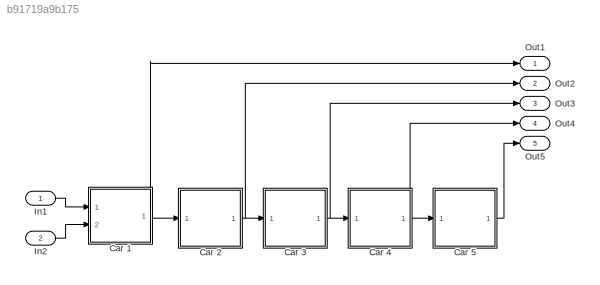
MODEL slx_b91719a9b175
KIND model
CONFIG AbsTol = 1e-5
CONFIG EnableMultiTasking = on
CONFIG FixedStep = 0.1
CONFIG MaxStep = auto
CONFIG MinStep = 0.01
CONFIG RelTol = 1e-3
CONFIG SampleTimeConstraint = Unconstrained
CONFIG Solver = VariableStepAuto
CONFIG SolverName = VariableStepAuto
CONFIG StartTime = 0
CONFIG StopTime = 100
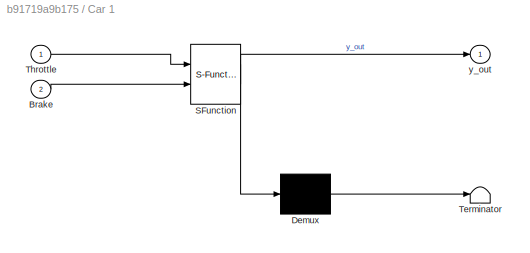
BLOCK [SubSystem] Car 1
  ErrorFcn = Stateflow.Translate.translate
  PermitHierarchicalResolution = ExplicitOnly
  Ports = [2, 1]
  RequestExecContextInheritance = off
  SFBlockType = Chart
  TreatAsAtomicUnit = on
BLOCK [Demux] Car 1/ Demux 
  Outputs = 1
  Ports = [1, 1]
BLOCK [S-Function] Car 1/ SFunction 
  EnableBusSupport = off
  FunctionName = sf_sfun
  PortCounts = [2 2]
  Ports = [2, 2]
  SFcnIsStateOwnerBlock = off
  SFunctionDeploymentMode = off
  Tag = Stateflow S-Function 1
BLOCK [Terminator] Car 1/ Terminator 
BLOCK [Inport] Car 1/Brake
  Port = 2
BLOCK [Inport] Car 1/Throttle
BLOCK [Outport] Car 1/y_out
  VectorParamsAs1DForOutWhenUnconnected = off
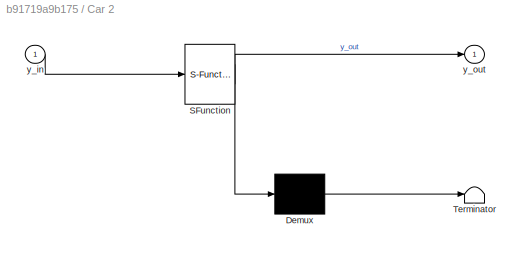
BLOCK [SubSystem] Car 2
  ErrorFcn = Stateflow.Translate.translate
  PermitHierarchicalResolution = ExplicitOnly
  Ports = [1, 1]
  RequestExecContextInheritance = off
  SFBlockType = Chart
  TreatAsAtomicUnit = on
BLOCK [Demux] Car 2/ Demux 
  Outputs = 1
  Ports = [1, 1]
BLOCK [S-Function] Car 2/ SFunction 
  EnableBusSupport = off
  FunctionName = sf_sfun
  PortCounts = [1 2]
  Ports = [1, 2]
  SFcnIsStateOwnerBlock = off
  SFunctionDeploymentMode = off
  Tag = Stateflow S-Function 3
BLOCK [Terminator] Car 2/ Terminator 
BLOCK [Inport] Car 2/y_in
BLOCK [Outport] Car 2/y_out
  VectorParamsAs1DForOutWhenUnconnected = off
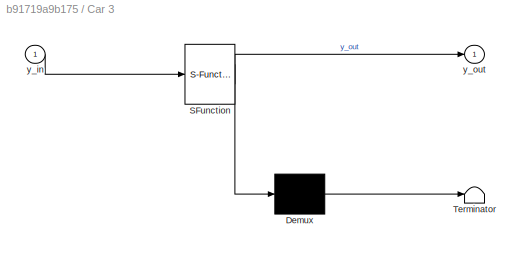
BLOCK [SubSystem] Car 3
  ErrorFcn = Stateflow.Translate.translate
  PermitHierarchicalResolution = ExplicitOnly
  Ports = [1, 1]
  RequestExecContextInheritance = off
  SFBlockType = Chart
  TreatAsAtomicUnit = on
BLOCK [Demux] Car 3/ Demux 
  Outputs = 1
  Ports = [1, 1]
BLOCK [S-Function] Car 3/ SFunction 
  EnableBusSupport = off
  FunctionName = sf_sfun
  PortCounts = [1 2]
  Ports = [1, 2]
  SFcnIsStateOwnerBlock = off
  SFunctionDeploymentMode = off
  Tag = Stateflow S-Function 2
BLOCK [Terminator] Car 3/ Terminator 
BLOCK [Inport] Car 3/y_in
BLOCK [Outport] Car 3/y_out
  VectorParamsAs1DForOutWhenUnconnected = off
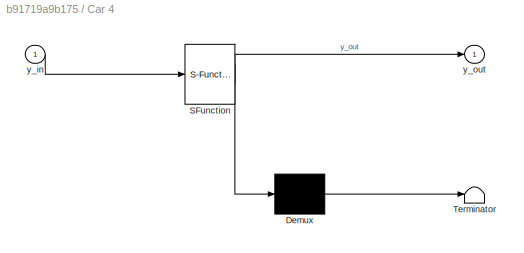
BLOCK [SubSystem] Car 4
  ErrorFcn = Stateflow.Translate.translate
  PermitHierarchicalResolution = ExplicitOnly
  Ports = [1, 1]
  RequestExecContextInheritance = off
  SFBlockType = Chart
  TreatAsAtomicUnit = on
BLOCK [Demux] Car 4/ Demux 
  Outputs = 1
  Ports = [1, 1]
BLOCK [S-Function] Car 4/ SFunction 
  EnableBusSupport = off
  FunctionName = sf_sfun
  PortCounts = [1 2]
  Ports = [1, 2]
  SFcnIsStateOwnerBlock = off
  SFunctionDeploymentMode = off
  Tag = Stateflow S-Function 4
BLOCK [Terminator] Car 4/ Terminator 
BLOCK [Inport] Car 4/y_in
BLOCK [Outport] Car 4/y_out
  VectorParamsAs1DForOutWhenUnconnected = off
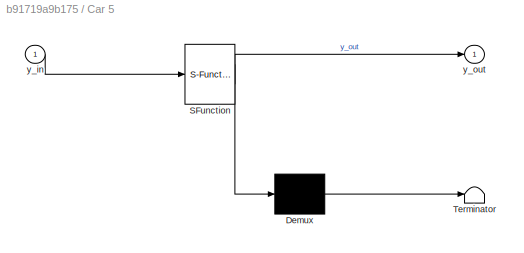
BLOCK [SubSystem] Car 5
  ErrorFcn = Stateflow.Translate.translate
  PermitHierarchicalResolution = ExplicitOnly
  Ports = [1, 1]
  RequestExecContextInheritance = off
  SFBlockType = Chart
  TreatAsAtomicUnit = on
BLOCK [Demux] Car 5/ Demux 
  Outputs = 1
  Ports = [1, 1]
BLOCK [S-Function] Car 5/ SFunction 
  EnableBusSupport = off
  FunctionName = sf_sfun
  PortCounts = [1 2]
  Ports = [1, 2]
  SFcnIsStateOwnerBlock = off
  SFunctionDeploymentMode = off
  Tag = Stateflow S-Function 5
BLOCK [Terminator] Car 5/ Terminator 
BLOCK [Inport] Car 5/y_in
BLOCK [Outport] Car 5/y_out
  VectorParamsAs1DForOutWhenUnconnected = off
BLOCK [Inport] In1
BLOCK [Inport] In2
  Port = 2
BLOCK [Outport] Out1
  VectorParamsAs1DForOutWhenUnconnected = off
BLOCK [Outport] Out2
  Port = 2
  VectorParamsAs1DForOutWhenUnconnected = off
BLOCK [Outport] Out3
  Port = 3
  VectorParamsAs1DForOutWhenUnconnected = off
BLOCK [Outport] Out4
  Port = 4
  VectorParamsAs1DForOutWhenUnconnected = off
BLOCK [Outport] Out5
  Port = 5
  VectorParamsAs1DForOutWhenUnconnected = off
NET Car 1:1 -> Car 2:1, Out1:1
NET Car 2:1 -> Car 3:1, Out2:1
NET Car 3:1 -> Car 4:1, Out3:1
NET Car 4:1 -> Car 5:1, Out4:1
LINE Car 5:1 -> Out5:1
LINE In1:1 -> Car 1:1
LINE In2:1 -> Car 1:2
note: NET lines group one-source signal fan-out (src -> all destinations, sorted); 1:1 wires keep LINE
CHART Car 1 states=1 transitions=1
  STATE_LABEL 'Run\nduring:\nv_dot = -Throttle - Brake * v;\ny_dot = v;\ny_out = y;\n'
CHART Car 3 states=3 transitions=5
  STATE_LABEL 'Chasing\nduring:\nv_dot = 1;\ny_dot = -v;\ny_out = y;'
  STATE_LABEL 'Keeping \nduring:\ny_dot = v;\ny_out = y;\n'
  STATE_LABEL 'Braking\nduring:\nv_dot = -v;\ny_dot = -v;\ny_out = y;'
CHART Car 2 states=3 transitions=5
  STATE_LABEL 'Chasing\nduring:\nv_dot = 1;\ny_dot = -v;\ny_out = y;'
  STATE_LABEL 'Keeping \nduring:\ny_dot = v;\ny_out = y;\n'
  STATE_LABEL 'Braking\nduring:\nv_dot = -v;\ny_dot = -v;\ny_out = y;'
CHART Car 4 states=3 transitions=5
  STATE_LABEL 'Chasing\nduring:\nv_dot = 1;\ny_dot = -v;\ny_out = y;'
  STATE_LABEL 'Keeping \nduring:\ny_dot = v;\ny_out = y;\n'
  STATE_LABEL 'Braking\nduring:\nv_dot = -v;\ny_dot = -v;\ny_out = y;'
CHART Car 5 states=3 transitions=5
  STATE_LABEL 'Keeping \nduring:\ny_dot = v;\ny_out = y;\n'
  STATE_LABEL 'Chasing\nduring:\nv_dot = 1;\ny_dot = -v;\ny_out = y;'
  STATE_LABEL 'Braking\nduring:\nv_dot = -v;\ny_dot = -v;\ny_out = y;'
CHART  states=0 transitions=0
CHART  states=0 transitions=0
CHART  states=0 transitions=0
CHART  states=0 transitions=0
CHART  states=0 transitions=0
